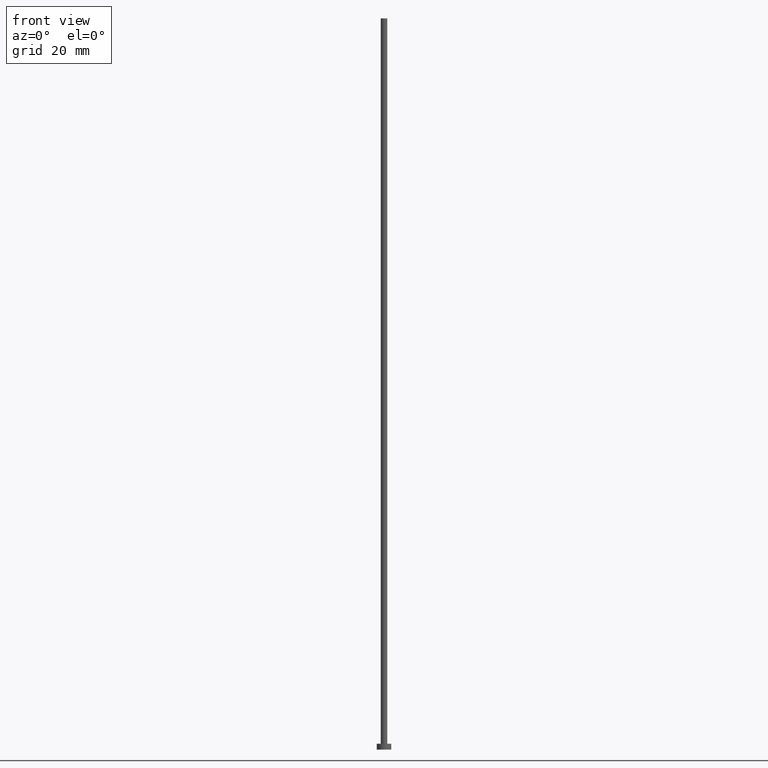
[diagram: clean part render]
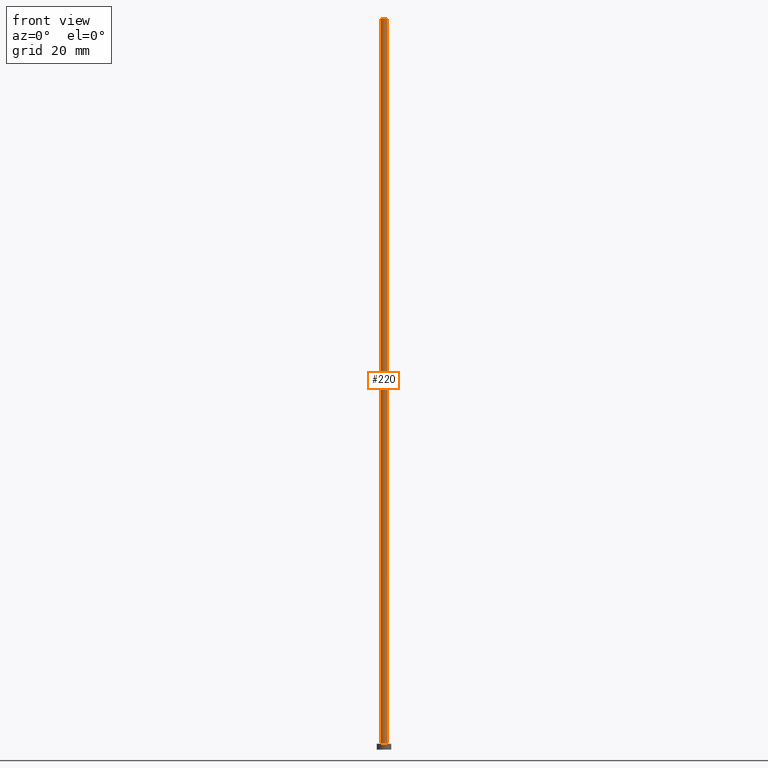
[diagram: same view with one face highlighted and labeled with its STEP entity id]
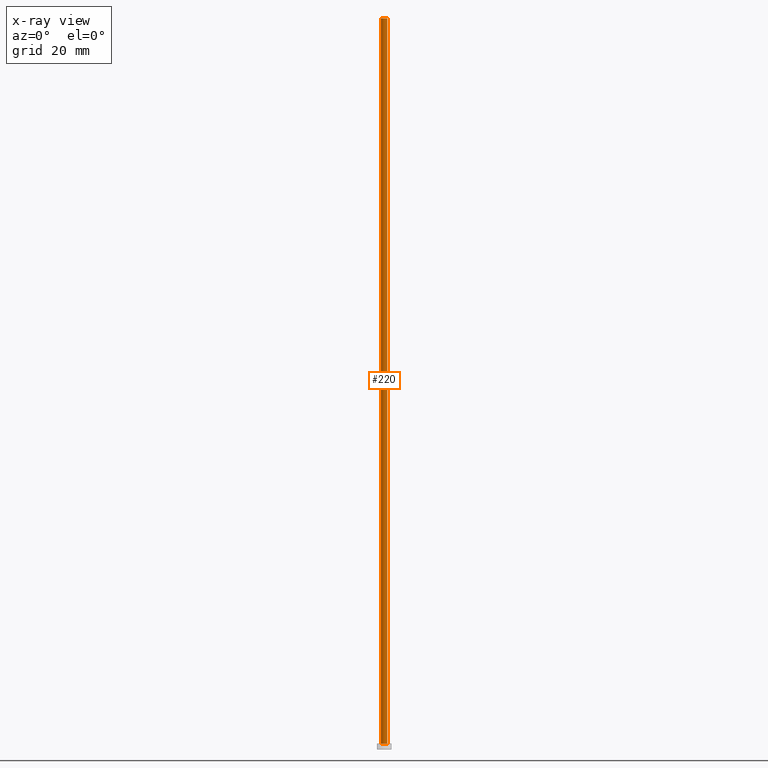
[diagram: x-ray of the same camera — body ghosted, the highlighted face saturated]
A machine part, front view. The second image highlights one B-rep face of the part: STEP entity #220.
The next image is the same camera in x-ray: the body ghosted, the highlighted face saturated — about 0% of this face is hidden behind the body in this view.
In plain terms, the highlighted cylindrical surface (edge-blend (fillet) strip) has radius 1.1 mm, axis along (-0, -0, -1).
Its self-contained STEP definition (entity closure, byte-faithful):
#11 = DIRECTION ( 'NONE',  ( -0.000000000000000000, -0.000000000000000000, -1.000000000000000000 ) ) ;
#13 = DIRECTION ( 'NONE',  ( 1.000000000000000000, 0.000000000000000000, 0.000000000000000000 ) ) ;
#32 = DIRECTION ( 'NONE',  ( 1.000000000000000000, 0.000000000000000000, 0.000000000000000000 ) ) ;
#34 = AXIS2_PLACEMENT_3D ( 'NONE', #232, #230, #201 ) ;
#35 = VERTEX_POINT ( 'NONE', #252 ) ;
#50 = ORIENTED_EDGE ( 'NONE', *, *, #145, .F. ) ;
#54 = EDGE_CURVE ( 'NONE', #253, #154, #142, .T. ) ;
#56 = ORIENTED_EDGE ( 'NONE', *, *, #63, .F. ) ;
#58 = EDGE_CURVE ( 'NONE', #154, #35, #213, .T. ) ;
#59 = LINE ( 'NONE', #190, #104 ) ;
#61 = DIRECTION ( 'NONE',  ( -0.000000000000000000, -0.000000000000000000, -1.000000000000000000 ) ) ;
#63 = EDGE_CURVE ( 'NONE', #253, #150, #219, .T. ) ;
#68 = CARTESIAN_POINT ( 'NONE',  ( -1.100000000000000089, 0.000000000000000000, 250.0000000000000000 ) ) ;
#77 = DIRECTION ( 'NONE',  ( 0.000000000000000000, 0.000000000000000000, 1.000000000000000000 ) ) ;
#79 = CARTESIAN_POINT ( 'NONE',  ( -1.100000000000000089, 0.000000000000000000, 250.0000000000000000 ) ) ;
#97 = AXIS2_PLACEMENT_3D ( 'NONE', #200, #170, #13 ) ;
#101 = AXIS2_PLACEMENT_3D ( 'NONE', #147, #77, #32 ) ;
#104 = VECTOR ( 'NONE', #61, 1000.000000000000000 ) ;
#108 = FACE_OUTER_BOUND ( 'NONE', #239, .T. ) ;
#139 = CARTESIAN_POINT ( 'NONE',  ( 1.100000000000000089, 1.347111479062088503E-16, 250.0000000000000000 ) ) ;
#141 = CYLINDRICAL_SURFACE ( 'NONE', #34, 1.100000000000000089 ) ;
#142 = LINE ( 'NONE', #68, #233 ) ;
#144 = ORIENTED_EDGE ( 'NONE', *, *, #54, .T. ) ;
#145 = EDGE_CURVE ( 'NONE', #150, #35, #59, .T. ) ;
#147 = CARTESIAN_POINT ( 'NONE',  ( 0.000000000000000000, 0.000000000000000000, 250.0000000000000000 ) ) ;
#150 = VERTEX_POINT ( 'NONE', #139 ) ;
#154 = VERTEX_POINT ( 'NONE', #227 ) ;
#170 = DIRECTION ( 'NONE',  ( 0.000000000000000000, 0.000000000000000000, 1.000000000000000000 ) ) ;
#190 = CARTESIAN_POINT ( 'NONE',  ( 1.100000000000000089, 1.347111479062088503E-16, 250.0000000000000000 ) ) ;
#200 = CARTESIAN_POINT ( 'NONE',  ( 0.000000000000000000, 0.000000000000000000, 2.000000000000000000 ) ) ;
#201 = DIRECTION ( 'NONE',  ( -1.000000000000000000, 0.000000000000000000, 0.000000000000000000 ) ) ;
#207 = ORIENTED_EDGE ( 'NONE', *, *, #58, .T. ) ;
#213 = CIRCLE ( 'NONE', #97, 1.100000000000000089 ) ;
#219 = CIRCLE ( 'NONE', #101, 1.100000000000000089 ) ;
#220 = ADVANCED_FACE ( 'NONE', ( #108 ), #141, .T. ) ;
#227 = CARTESIAN_POINT ( 'NONE',  ( -1.100000000000000089, 0.000000000000000000, 2.000000000000000000 ) ) ;
#230 = DIRECTION ( 'NONE',  ( -0.000000000000000000, -0.000000000000000000, -1.000000000000000000 ) ) ;
#232 = CARTESIAN_POINT ( 'NONE',  ( 0.000000000000000000, 0.000000000000000000, 250.0000000000000000 ) ) ;
#233 = VECTOR ( 'NONE', #11, 1000.000000000000000 ) ;
#239 = EDGE_LOOP ( 'NONE', ( #50, #56, #144, #207 ) ) ;
#252 = CARTESIAN_POINT ( 'NONE',  ( 1.100000000000000089, 1.347111479062088503E-16, 2.000000000000000000 ) ) ;
#253 = VERTEX_POINT ( 'NONE', #79 ) ;